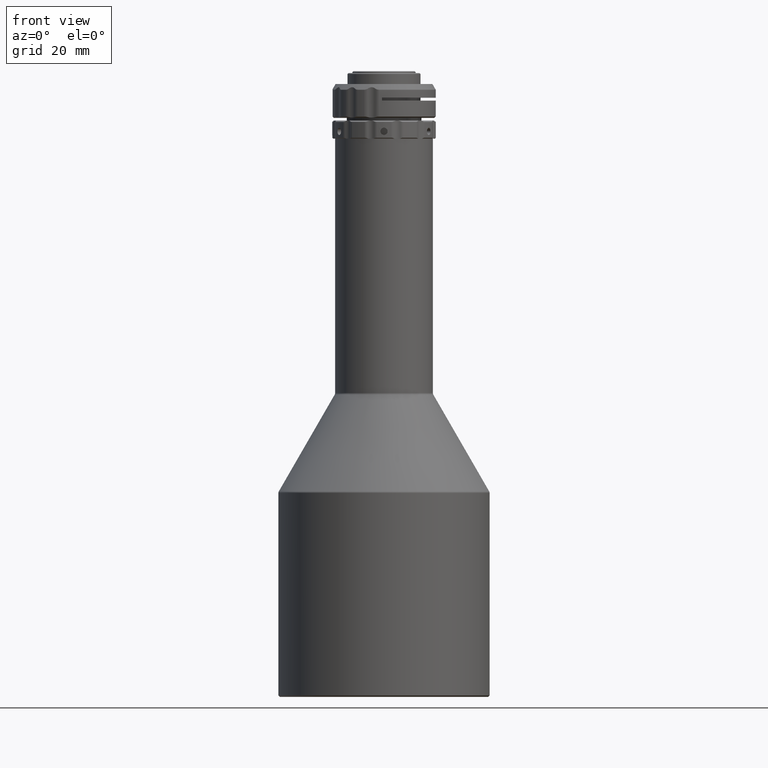
[diagram: clean part render]
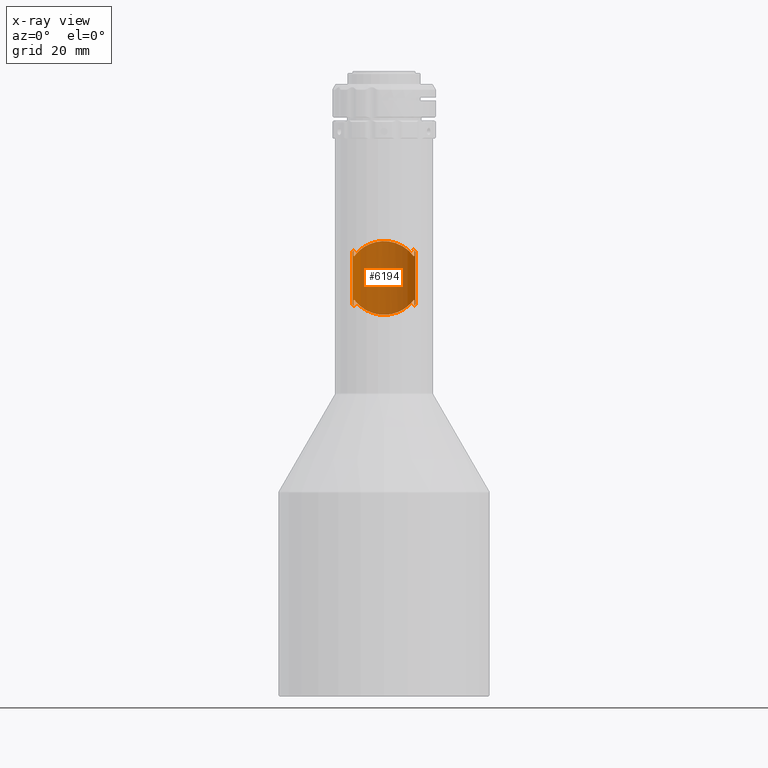
[diagram: x-ray — body ghosted, one internal face saturated and labeled with its STEP entity id]
A machine part, front view, then the same camera in x-ray: the body is ghosted and one INTERNAL B-rep face — a face not visible from any outside direction — is saturated and labeled: STEP entity #6194.
In plain terms, the highlighted cylindrical surface (partial cylindrical patch) has radius 15.2932 mm, axis along (-0, -0, 1).
Its self-contained STEP definition (entity closure, byte-faithful):
#27 = CARTESIAN_POINT ( 'NONE',  ( 10.51992422958268100, 11.10106620702074800, 40.60956071256474300 ) ) ;
#115 = EDGE_CURVE ( 'NONE', #3892, #7442, #443, .T. ) ;
#194 = CARTESIAN_POINT ( 'NONE',  ( 10.62456179475490400, 11.00000000000030400, 25.22518680178821500 ) ) ;
#225 = VERTEX_POINT ( 'NONE', #2726 ) ;
#266 = ORIENTED_EDGE ( 'NONE', *, *, #10247, .F. ) ;
#278 = CARTESIAN_POINT ( 'NONE',  ( -10.51992422958273500, 11.10106620702070400, 25.25305629285648100 ) ) ;
#304 = CARTESIAN_POINT ( 'NONE',  ( -7.650557271306993800, 13.24980617182746000, 43.23594495901364400 ) ) ;
#338 = CARTESIAN_POINT ( 'NONE',  ( -0.2499751579699509600, 15.29348193668676700, 45.75667015292305000 ) ) ;
#378 = CARTESIAN_POINT ( 'NONE',  ( -8.028920466383818100, 13.02311130603927600, 42.94337475816741500 ) ) ;
#442 = VERTEX_POINT ( 'NONE', #5906 ) ;
#443 = B_SPLINE_CURVE_WITH_KNOTS ( 'NONE', 3,
 ( #1707, #11429, #7985, #2688 ),
 .UNSPECIFIED., .F., .F.,
 ( 4, 4 ),
 ( 7.152448122690996000E-018, 0.001108929079528983900 ),
 .UNSPECIFIED. ) ;
#535 = ORIENTED_EDGE ( 'NONE', *, *, #10148, .F. ) ;
#562 = CARTESIAN_POINT ( 'NONE',  ( -8.036864442897382300, 13.01821076021959700, 22.92561068032857500 ) ) ;
#570 = VERTEX_POINT ( 'NONE', #11492 ) ;
#578 = VECTOR ( 'NONE', #10459, 1000.000000000000000 ) ;
#638 = B_SPLINE_CURVE_WITH_KNOTS ( 'NONE', 3,
 ( #11128, #4946, #8431, #8471 ),
 .UNSPECIFIED., .F., .F.,
 ( 4, 4 ),
 ( 9.420603377531353200E-005, 0.001008493004291815900 ),
 .UNSPECIFIED. ) ;
#655 = DIRECTION ( 'NONE',  ( 0.0000000000000000000, 0.0000000000000000000, -1.000000000000000000 ) ) ;
#710 = DIRECTION ( 'NONE',  ( -0.0000000000000000000, -0.0000000000000000000, 1.000000000000000000 ) ) ;
#843 = CARTESIAN_POINT ( 'NONE',  ( 10.92663321113036400, 10.70000000000027300, 42.07850406580116200 ) ) ;
#846 = CARTESIAN_POINT ( 'NONE',  ( -10.62456179475515200, 11.00000000000006400, 23.89133136394410400 ) ) ;
#913 = CARTESIAN_POINT ( 'NONE',  ( 10.62456179475544700, 11.00000000000029500, 23.89133136394446700 ) ) ;
#1014 = VERTEX_POINT ( 'NONE', #3478 ) ;
#1086 = CARTESIAN_POINT ( 'NONE',  ( 10.62456179475544700, 10.99999999999978000, 1000.000000000000000 ) ) ;
#1113 = EDGE_CURVE ( 'NONE', #4418, #6222, #8360, .T. ) ;
#1114 = ORIENTED_EDGE ( 'NONE', *, *, #9196, .F. ) ;
#1142 = VECTOR ( 'NONE', #6148, 1000.000000000000000 ) ;
#1153 = CARTESIAN_POINT ( 'NONE',  ( 10.30491694923240200, 11.30000000000029400, 25.29656478275407800 ) ) ;
#1172 = ORIENTED_EDGE ( 'NONE', *, *, #5350, .T. ) ;
#1218 = B_SPLINE_CURVE_WITH_KNOTS ( 'NONE', 3,
 ( #6817, #2320, #8554, #562, #4146, #10375, #5025, #9670, #8755, #3405, #6931, #8716, #11329, #10518, #10558, #7835, #6857, #2498, #4339, #7015, #5107, #3438, #11442, #5217, #1640, #1525, #9626, #6112, #7873, #8676, #11288, #4297, #5972, #4219 ),
 .UNSPECIFIED., .F., .F.,
 ( 4, 2, 2, 2, 2, 2, 2, 2, 2, 2, 2, 2, 2, 2, 2, 2, 4 ),
 ( 8.464064092352552000E-016, 0.003171535118301927800, 0.004757302677452468000, 0.006343070236603009000, 0.007928837795753549200, 0.009514605354904089400, 0.01268614047320516800, 0.01347902425278043800, 0.01427190803235571000, 0.01585767559150624800, 0.01665055937108151800, 0.01744344315065679200, 0.01902921070980732200, 0.02061497826895785500, 0.02220074582810838800, 0.02378651338725891800, 0.02537228094640945100 ),
 .UNSPECIFIED. ) ;
#1260 = VECTOR ( 'NONE', #655, 1000.000000000000000 ) ;
#1525 = CARTESIAN_POINT ( 'NONE',  ( 6.423285546945679800, 13.88715813253056600, 21.81953627950565200 ) ) ;
#1576 = LINE ( 'NONE', #1086, #11045 ) ;
#1609 = EDGE_CURVE ( 'NONE', #4425, #10221, #9995, .T. ) ;
#1640 = CARTESIAN_POINT ( 'NONE',  ( 5.539673696313627700, 14.26267063189366600, 21.35365353737494600 ) ) ;
#1649 = ORIENTED_EDGE ( 'NONE', *, *, #2578, .F. ) ;
#1669 = CARTESIAN_POINT ( 'NONE',  ( -10.52103649283271400, 11.10291204000849200, 42.54734720098227300 ) ) ;
#1678 = CARTESIAN_POINT ( 'NONE',  ( 10.62456179475491600, 11.00000000000029100, 40.63743020363347800 ) ) ;
#1707 = CARTESIAN_POINT ( 'NONE',  ( -10.92663321113036500, 10.70000000000030500, 23.78411293962011200 ) ) ;
#1722 = CARTESIAN_POINT ( 'NONE',  ( 10.41338391449886000, 11.20108468417623000, 40.58581003801421600 ) ) ;
#1749 = CARTESIAN_POINT ( 'NONE',  ( -10.72810844438735400, 10.90272965509578500, 42.31564858671703900 ) ) ;
#2048 = CARTESIAN_POINT ( 'NONE',  ( 5.551351988053275100, 14.25802008524564500, 44.50322579085630500 ) ) ;
#2066 = CARTESIAN_POINT ( 'NONE',  ( -10.30491694923181900, 11.30000000000031000, 40.56605222266882300 ) ) ;
#2085 = CARTESIAN_POINT ( 'NONE',  ( 6.428748866860838800, 13.88451776812456400, 44.03977224104017600 ) ) ;
#2100 = CARTESIAN_POINT ( 'NONE',  ( -10.62456179475544400, 11.00000000000029800, 40.63743020363320100 ) ) ;
#2158 = CARTESIAN_POINT ( 'NONE',  ( -10.92663321113036500, 10.70000000000030500, 42.07850406580158900 ) ) ;
#2171 = ORIENTED_EDGE ( 'NONE', *, *, #3006, .F. ) ;
#2227 = EDGE_CURVE ( 'NONE', #3606, #10345, #3595, .T. ) ;
#2274 = CARTESIAN_POINT ( 'NONE',  ( 10.92663321113036400, 10.70000000000027300, 23.78411293962049600 ) ) ;
#2320 = CARTESIAN_POINT ( 'NONE',  ( -9.745041350167570100, 11.81057270356354400, 24.54087844122218000 ) ) ;
#2353 = CARTESIAN_POINT ( 'NONE',  ( 10.72810844438735800, 10.90272965509578100, 23.54696841870500300 ) ) ;
#2442 = CARTESIAN_POINT ( 'NONE',  ( -10.30491694923237800, 11.30000000000029700, 23.08899237948929100 ) ) ;
#2498 = CARTESIAN_POINT ( 'NONE',  ( 2.099582896620404900, 15.15750726961549700, 20.26834682110336800 ) ) ;
#2578 = EDGE_CURVE ( 'NONE', #225, #442, #6510, .T. ) ;
#2688 = CARTESIAN_POINT ( 'NONE',  ( -10.30491694923237800, 11.30000000000029700, 23.08899237948929100 ) ) ;
#2699 = CARTESIAN_POINT ( 'NONE',  ( -10.62456179475544400, 10.99999999999978300, 1000.000000000000000 ) ) ;
#2726 = CARTESIAN_POINT ( 'NONE',  ( 10.92663321113036400, 10.70000000000027300, 42.07850406580116200 ) ) ;
#2743 = B_SPLINE_CURVE_WITH_KNOTS ( 'NONE', 3,
 ( #11451, #6121, #8010, #3643 ),
 .UNSPECIFIED., .F., .F.,
 ( 4, 4 ),
 ( 9.012802632015843000E-005, 0.001004414996836594700 ),
 .UNSPECIFIED. ) ;
#2902 = CARTESIAN_POINT ( 'NONE',  ( 6.851671310700949900, 13.68011249378317900, 43.78368382289977500 ) ) ;
#2917 = CARTESIAN_POINT ( 'NONE',  ( 10.30491694923206900, 11.30000000000008400, 23.08899237948968900 ) ) ;
#2942 = CARTESIAN_POINT ( 'NONE',  ( -5.539673696312766200, 14.26267063189399700, 44.50896346804734800 ) ) ;
#3006 = EDGE_CURVE ( 'NONE', #7735, #6891, #7407, .T. ) ;
#3016 = CARTESIAN_POINT ( 'NONE',  ( 4.144876559553498700, 14.72921661351716000, 45.07874158706962900 ) ) ;
#3033 = CARTESIAN_POINT ( 'NONE',  ( -10.30491694923182800, 11.30000000000030100, 25.29656478275286000 ) ) ;
#3052 = EDGE_CURVE ( 'NONE', #5317, #570, #1218, .T. ) ;
#3250 = ORIENTED_EDGE ( 'NONE', *, *, #5554, .T. ) ;
#3405 = CARTESIAN_POINT ( 'NONE',  ( -4.144876559552551900, 14.72921661351742600, 20.78387541835164500 ) ) ;
#3418 = CARTESIAN_POINT ( 'NONE',  ( -10.41670270960328000, 11.19805814365211200, 23.35362667868092100 ) ) ;
#3438 = CARTESIAN_POINT ( 'NONE',  ( 4.124437929504163800, 14.72873815685406900, 20.78482788755575300 ) ) ;
#3465 = CARTESIAN_POINT ( 'NONE',  ( -10.92663321113036500, 10.70000000000030500, 42.07850406580158900 ) ) ;
#3478 = CARTESIAN_POINT ( 'NONE',  ( -10.62456179475544400, 11.00000000000029800, 25.22518680178850300 ) ) ;
#3595 = B_SPLINE_CURVE_WITH_KNOTS ( 'NONE', 3,
 ( #2100, #3777, #7360, #2066 ),
 .UNSPECIFIED., .F., .F.,
 ( 4, 4 ),
 ( 4.419369574041553100E-005, 0.0004883419173414902000 ),
 .UNSPECIFIED. ) ;
#3606 = VERTEX_POINT ( 'NONE', #5136 ) ;
#3643 = CARTESIAN_POINT ( 'NONE',  ( -10.62456179475515900, 11.00000000000005900, 41.97128564147760000 ) ) ;
#3676 = CARTESIAN_POINT ( 'NONE',  ( 10.62456179475491600, 11.00000000000029100, 40.63743020363347800 ) ) ;
#3733 = CARTESIAN_POINT ( 'NONE',  ( -10.30491694923237800, 11.30000000000029700, 23.08899237948929100 ) ) ;
#3739 = ORIENTED_EDGE ( 'NONE', *, *, #3861, .F. ) ;
#3777 = CARTESIAN_POINT ( 'NONE',  ( -10.51992422958273500, 11.10106620702070400, 40.60956071256520500 ) ) ;
#3799 = CARTESIAN_POINT ( 'NONE',  ( 9.745041350167591400, 11.81057270356351600, 41.32173856419911600 ) ) ;
#3810 = CARTESIAN_POINT ( 'NONE',  ( 10.92663321113033300, 10.69999999999982200, 1000.000000000000000 ) ) ;
#3838 = CARTESIAN_POINT ( 'NONE',  ( -9.084032632539065200, 12.30958816434220400, 41.99673511480548200 ) ) ;
#3861 = EDGE_CURVE ( 'NONE', #11083, #1014, #4201, .T. ) ;
#3881 = CARTESIAN_POINT ( 'NONE',  ( 7.657664146578690100, 13.24579395169078900, 43.23080507576386100 ) ) ;
#3892 = VERTEX_POINT ( 'NONE', #6872 ) ;
#3910 = CARTESIAN_POINT ( 'NONE',  ( 3.645778663326518600, 14.86123741297238300, 45.23824710515219700 ) ) ;
#4049 = ORIENTED_EDGE ( 'NONE', *, *, #6666, .F. ) ;
#4107 = VECTOR ( 'NONE', #7428, 1000.000000000000000 ) ;
#4146 = CARTESIAN_POINT ( 'NONE',  ( -7.657664146577975100, 13.24579395169120800, 22.63181192965705800 ) ) ;
#4201 = LINE ( 'NONE', #7663, #578 ) ;
#4219 = CARTESIAN_POINT ( 'NONE',  ( 10.30491694923240200, 11.30000000000029400, 25.29656478275407800 ) ) ;
#4225 = B_SPLINE_CURVE_WITH_KNOTS ( 'NONE', 3,
 ( #194, #9999, #8214, #1153 ),
 .UNSPECIFIED., .F., .F.,
 ( 4, 4 ),
 ( 4.419369574068992200E-005, 0.0004883419173411807700 ),
 .UNSPECIFIED. ) ;
#4297 = CARTESIAN_POINT ( 'NONE',  ( 9.723334633152243000, 11.81111227854897900, 24.55524903897466500 ) ) ;
#4339 = CARTESIAN_POINT ( 'NONE',  ( 2.615112715338707300, 15.07685685149838900, 20.36484688392196300 ) ) ;
#4340 = B_SPLINE_CURVE_WITH_KNOTS ( 'NONE', 3,
 ( #7145, #3799, #9220, #7417, #3881, #2902, #2085, #2048, #10140, #3016, #3910, #10905, #4724, #338, #9117, #6484, #4798, #10032, #10947, #8326, #6554, #6520, #7377, #5614, #2942, #8212, #9189, #304, #378, #11026, #3838, #9152, #4691, #10071 ),
 .UNSPECIFIED., .F., .F.,
 ( 4, 2, 2, 2, 2, 2, 2, 2, 2, 2, 2, 2, 2, 2, 2, 2, 4 ),
 ( 0.0000000000000000000, 0.003171535118301086400, 0.004757302677451627500, 0.006343070236602167700, 0.007928837795752707900, 0.009514605354903248000, 0.01268614047320433000, 0.01347902425277960200, 0.01427190803235487200, 0.01585767559150541200, 0.01665055937108068200, 0.01744344315065595200, 0.01902921070980648900, 0.02061497826895702200, 0.02220074582810755900, 0.02378651338725809200, 0.02537228094640862600 ),
 .UNSPECIFIED. ) ;
#4356 = CARTESIAN_POINT ( 'NONE',  ( 10.52103649283257300, 11.10291204000811900, 42.54734720098206700 ) ) ;
#4418 = VERTEX_POINT ( 'NONE', #10619 ) ;
#4425 = VERTEX_POINT ( 'NONE', #7112 ) ;
#4486 = EDGE_CURVE ( 'NONE', #5317, #1014, #4810, .T. ) ;
#4502 = CARTESIAN_POINT ( 'NONE',  ( 10.72810844438733300, 10.90272965509618600, 42.31564858671632800 ) ) ;
#4691 = CARTESIAN_POINT ( 'NONE',  ( -10.02476019751375500, 11.55548602294040400, 40.94419092189948400 ) ) ;
#4702 = CARTESIAN_POINT ( 'NONE',  ( 10.62456179475490400, 11.00000000000030400, 25.22518680178821500 ) ) ;
#4724 = CARTESIAN_POINT ( 'NONE',  ( 1.089464074883327700, 15.29191306896611600, 45.75479935516239700 ) ) ;
#4798 = CARTESIAN_POINT ( 'NONE',  ( -1.314379198873259600, 15.23886350951262400, 45.69150394768662000 ) ) ;
#4810 = B_SPLINE_CURVE_WITH_KNOTS ( 'NONE', 3,
 ( #7230, #10810, #278, #5705 ),
 .UNSPECIFIED., .F., .F.,
 ( 4, 4 ),
 ( 4.525275888342147600E-005, 0.0004894009804844791700 ),
 .UNSPECIFIED. ) ;
#4946 = CARTESIAN_POINT ( 'NONE',  ( 10.52317378605841600, 11.09792756033148600, 42.24156205841541800 ) ) ;
#4985 = DIRECTION ( 'NONE',  ( 0.0000000000000000000, 0.0000000000000000000, -1.000000000000000000 ) ) ;
#5025 = CARTESIAN_POINT ( 'NONE',  ( -6.428748866860032300, 13.88451776812493700, 21.82284476438085000 ) ) ;
#5071 = CARTESIAN_POINT ( 'NONE',  ( 10.30491694923206900, 11.30000000000008400, 23.08899237948968900 ) ) ;
#5107 = CARTESIAN_POINT ( 'NONE',  ( 3.629668589996192000, 14.85840576422305000, 20.62791525143799700 ) ) ;
#5116 = CARTESIAN_POINT ( 'NONE',  ( -10.62456179475515200, 11.00000000000006400, 23.89133136394410400 ) ) ;
#5136 = CARTESIAN_POINT ( 'NONE',  ( -10.62456179475544400, 11.00000000000029800, 40.63743020363320100 ) ) ;
#5146 = VECTOR ( 'NONE', #4985, 1000.000000000000000 ) ;
#5217 = CARTESIAN_POINT ( 'NONE',  ( 5.081389645586264200, 14.43295534088251800, 21.14485584310095900 ) ) ;
#5309 = LINE ( 'NONE', #2699, #1142 ) ;
#5316 = CARTESIAN_POINT ( 'NONE',  ( 10.30491694923207300, 11.30000000000007900, 42.77362462593201500 ) ) ;
#5317 = VERTEX_POINT ( 'NONE', #3033 ) ;
#5350 = EDGE_CURVE ( 'NONE', #7735, #7833, #10915, .T. ) ;
#5414 = CARTESIAN_POINT ( 'NONE',  ( 10.30491694923240200, 11.30000000000029400, 40.56605222266762200 ) ) ;
#5489 = FACE_OUTER_BOUND ( 'NONE', #8244, .T. ) ;
#5554 = EDGE_CURVE ( 'NONE', #11083, #7442, #7966, .T. ) ;
#5578 = LINE ( 'NONE', #8698, #1260 ) ;
#5596 = CARTESIAN_POINT ( 'NONE',  ( 10.62456179475544700, 11.00000000000029500, 23.89133136394446700 ) ) ;
#5614 = CARTESIAN_POINT ( 'NONE',  ( -5.081389645585376900, 14.43295534088282700, 44.71776116232126700 ) ) ;
#5705 = CARTESIAN_POINT ( 'NONE',  ( -10.62456179475544400, 11.00000000000029800, 25.22518680178850300 ) ) ;
#5805 = EDGE_CURVE ( 'NONE', #9678, #570, #4225, .T. ) ;
#5840 = VERTEX_POINT ( 'NONE', #7307 ) ;
#5842 = ORIENTED_EDGE ( 'NONE', *, *, #7964, .T. ) ;
#5906 = CARTESIAN_POINT ( 'NONE',  ( 10.30491694923207300, 11.30000000000007900, 42.77362462593201500 ) ) ;
#5923 = ORIENTED_EDGE ( 'NONE', *, *, #1609, .F. ) ;
#5932 = CARTESIAN_POINT ( 'NONE',  ( 10.52103649283271700, 11.10291204000848900, 23.31526980443975100 ) ) ;
#5972 = CARTESIAN_POINT ( 'NONE',  ( 10.02476019751377500, 11.55548602294039600, 24.91842608352266100 ) ) ;
#6052 = CARTESIAN_POINT ( 'NONE',  ( -10.52317378605840800, 11.09792756033149400, 23.62105494700590600 ) ) ;
#6112 = CARTESIAN_POINT ( 'NONE',  ( 7.650557271307697200, 13.24980617182704800, 22.62667204640882100 ) ) ;
#6121 = CARTESIAN_POINT ( 'NONE',  ( -10.41670270960329200, 11.19805814365210000, 42.50899032674076500 ) ) ;
#6148 = DIRECTION ( 'NONE',  ( -0.0000000000000000000, -0.0000000000000000000, 1.000000000000000000 ) ) ;
#6194 = ADVANCED_FACE ( 'NONE', ( #5489 ), #8874, .T. ) ;
#6222 = VERTEX_POINT ( 'NONE', #1678 ) ;
#6441 = AXIS2_PLACEMENT_3D ( 'NONE', #10476, #710, #7795 ) ;
#6484 = CARTESIAN_POINT ( 'NONE',  ( -1.050654901363530700, 15.25936634574260300, 45.71597322065131400 ) ) ;
#6510 = B_SPLINE_CURVE_WITH_KNOTS ( 'NONE', 3,
 ( #843, #4502, #4356, #5316 ),
 .UNSPECIFIED., .F., .F.,
 ( 4, 4 ),
 ( 0.0000000000000000000, 0.001108929079529063300 ),
 .UNSPECIFIED. ) ;
#6520 = CARTESIAN_POINT ( 'NONE',  ( -4.124437929503217900, 14.72873815685433600, 45.07778911786638100 ) ) ;
#6554 = CARTESIAN_POINT ( 'NONE',  ( -3.629668589995217200, 14.85840576422329000, 45.23470175398409800 ) ) ;
#6617 = ORIENTED_EDGE ( 'NONE', *, *, #4486, .T. ) ;
#6666 = EDGE_CURVE ( 'NONE', #6891, #225, #8867, .T. ) ;
#6817 = CARTESIAN_POINT ( 'NONE',  ( -10.30491694923182800, 11.30000000000030100, 25.29656478275286000 ) ) ;
#6857 = CARTESIAN_POINT ( 'NONE',  ( 1.314379198874296800, 15.23886350951253200, 20.17111305773523700 ) ) ;
#6872 = CARTESIAN_POINT ( 'NONE',  ( -10.92663321113036500, 10.70000000000030500, 23.78411293962011200 ) ) ;
#6891 = VERTEX_POINT ( 'NONE', #10714 ) ;
#6931 = CARTESIAN_POINT ( 'NONE',  ( -3.645778663325541100, 14.86123741297262200, 20.62436990026912700 ) ) ;
#7015 = CARTESIAN_POINT ( 'NONE',  ( 3.376858368107869900, 14.91795627149691200, 20.55609176342325400 ) ) ;
#7112 = CARTESIAN_POINT ( 'NONE',  ( -10.30491694923237800, 11.30000000000029700, 42.77362462593237100 ) ) ;
#7145 = CARTESIAN_POINT ( 'NONE',  ( 10.30491694923240200, 11.30000000000029400, 40.56605222266762200 ) ) ;
#7216 = ORIENTED_EDGE ( 'NONE', *, *, #3052, .F. ) ;
#7230 = CARTESIAN_POINT ( 'NONE',  ( -10.30491694923182800, 11.30000000000030100, 25.29656478275286000 ) ) ;
#7307 = CARTESIAN_POINT ( 'NONE',  ( -10.62456179475515900, 11.00000000000005900, 41.97128564147760000 ) ) ;
#7360 = CARTESIAN_POINT ( 'NONE',  ( -10.41338391449877700, 11.20108468417631200, 40.58581003801464200 ) ) ;
#7377 = CARTESIAN_POINT ( 'NONE',  ( -4.367049536107241900, 14.65853142363380900, 44.99259342000144800 ) ) ;
#7397 = CARTESIAN_POINT ( 'NONE',  ( 10.41670270960328500, 11.19805814365210700, 23.35362667868128400 ) ) ;
#7407 = B_SPLINE_CURVE_WITH_KNOTS ( 'NONE', 3,
 ( #5071, #5932, #2353, #2274 ),
 .UNSPECIFIED., .F., .F.,
 ( 4, 4 ),
 ( 2.907926436840383400E-017, 0.001108929079529011700 ),
 .UNSPECIFIED. ) ;
#7417 = CARTESIAN_POINT ( 'NONE',  ( 8.036864442898060900, 13.01821076021917100, 42.93700632509232700 ) ) ;
#7428 = DIRECTION ( 'NONE',  ( -0.0000000000000000000, -0.0000000000000000000, 1.000000000000000000 ) ) ;
#7442 = VERTEX_POINT ( 'NONE', #3733 ) ;
#7456 = EDGE_CURVE ( 'NONE', #9678, #7833, #1576, .T. ) ;
#7663 = CARTESIAN_POINT ( 'NONE',  ( -10.62456179475544400, 10.99999999999978300, 1000.000000000000000 ) ) ;
#7735 = VERTEX_POINT ( 'NONE', #10524 ) ;
#7795 = DIRECTION ( 'NONE',  ( 1.000000000000000000, 0.0000000000000000000, 0.0000000000000000000 ) ) ;
#7833 = VERTEX_POINT ( 'NONE', #913 ) ;
#7835 = CARTESIAN_POINT ( 'NONE',  ( 1.050654901364571800, 15.25936634574252800, 20.14664378477050000 ) ) ;
#7873 = CARTESIAN_POINT ( 'NONE',  ( 8.028920466384489500, 13.02311130603886900, 22.91924224725507700 ) ) ;
#7964 = EDGE_CURVE ( 'NONE', #8819, #442, #638, .T. ) ;
#7966 = B_SPLINE_CURVE_WITH_KNOTS ( 'NONE', 3,
 ( #5116, #6052, #3418, #2442 ),
 .UNSPECIFIED., .F., .F.,
 ( 4, 4 ),
 ( 9.420603377534433700E-005, 0.001008493004291811500 ),
 .UNSPECIFIED. ) ;
#7985 = CARTESIAN_POINT ( 'NONE',  ( -10.52103649283255700, 11.10291204000813400, 23.31526980443921800 ) ) ;
#8010 = CARTESIAN_POINT ( 'NONE',  ( -10.52317378605841800, 11.09792756033148500, 42.24156205841578800 ) ) ;
#8212 = CARTESIAN_POINT ( 'NONE',  ( -6.423285546944872400, 13.88715813253094200, 44.04308072591673100 ) ) ;
#8214 = CARTESIAN_POINT ( 'NONE',  ( 10.41338391449885700, 11.20108468417623500, 25.27680696740747700 ) ) ;
#8236 = LINE ( 'NONE', #9407, #5146 ) ;
#8244 = EDGE_LOOP ( 'NONE', ( #4049, #2171, #1172, #9696, #9927, #7216, #6617, #3739, #3250, #11033, #10944, #5923, #8941, #1114, #10920, #535, #11070, #266, #5842, #1649 ) ) ;
#8264 = CARTESIAN_POINT ( 'NONE',  ( 10.52317378605841100, 11.09792756033149000, 23.62105494700628200 ) ) ;
#8326 = CARTESIAN_POINT ( 'NONE',  ( -3.376858368106884000, 14.91795627149713100, 45.30652524199882000 ) ) ;
#8360 = B_SPLINE_CURVE_WITH_KNOTS ( 'NONE', 3,
 ( #5414, #1722, #27, #3676 ),
 .UNSPECIFIED., .F., .F.,
 ( 4, 4 ),
 ( 4.525275888371578200E-005, 0.0004894009804842226400 ),
 .UNSPECIFIED. ) ;
#8431 = CARTESIAN_POINT ( 'NONE',  ( 10.41670270960329100, 11.19805814365210100, 42.50899032674042400 ) ) ;
#8471 = CARTESIAN_POINT ( 'NONE',  ( 10.30491694923207300, 11.30000000000007900, 42.77362462593201500 ) ) ;
#8554 = CARTESIAN_POINT ( 'NONE',  ( -9.111583092024366300, 12.31239698228746200, 23.85618346211423500 ) ) ;
#8676 = CARTESIAN_POINT ( 'NONE',  ( 8.745668262579258100, 12.55301870411730600, 23.53884763241292800 ) ) ;
#8682 = EDGE_CURVE ( 'NONE', #4425, #5840, #2743, .T. ) ;
#8698 = CARTESIAN_POINT ( 'NONE',  ( -10.92663321113033000, 10.69999999999982500, 1000.000000000000000 ) ) ;
#8716 = CARTESIAN_POINT ( 'NONE',  ( -2.129314461243356800, 15.17940703585653800, 20.24139501876398100 ) ) ;
#8755 = CARTESIAN_POINT ( 'NONE',  ( -5.095308101143746900, 14.42801646437461300, 21.15090241517159700 ) ) ;
#8819 = VERTEX_POINT ( 'NONE', #11520 ) ;
#8867 = LINE ( 'NONE', #3810, #4107 ) ;
#8874 = CYLINDRICAL_SURFACE ( 'NONE', #6441, 15.29317865358840900 ) ;
#8941 = ORIENTED_EDGE ( 'NONE', *, *, #8682, .T. ) ;
#9117 = CARTESIAN_POINT ( 'NONE',  ( -0.5191020139943938200, 15.28668276946990000, 45.74856486946023200 ) ) ;
#9125 = DIRECTION ( 'NONE',  ( 0.0000000000000000000, 0.0000000000000000000, -1.000000000000000000 ) ) ;
#9152 = CARTESIAN_POINT ( 'NONE',  ( -9.723334633151733200, 11.81111227854940200, 41.30736796644801200 ) ) ;
#9189 = CARTESIAN_POINT ( 'NONE',  ( -6.849208740630464500, 13.68125468587646800, 43.78510501293639100 ) ) ;
#9196 = EDGE_CURVE ( 'NONE', #3606, #5840, #5309, .T. ) ;
#9220 = CARTESIAN_POINT ( 'NONE',  ( 9.111583092024947200, 12.31239698228702500, 42.00643354330655700 ) ) ;
#9407 = CARTESIAN_POINT ( 'NONE',  ( 10.62456179475544700, 10.99999999999978000, 1000.000000000000000 ) ) ;
#9469 = EDGE_CURVE ( 'NONE', #10221, #3892, #5578, .T. ) ;
#9623 = CARTESIAN_POINT ( 'NONE',  ( -10.30491694923181900, 11.30000000000031000, 40.56605222266882300 ) ) ;
#9626 = CARTESIAN_POINT ( 'NONE',  ( 6.849208740631235400, 13.68125468587607300, 22.07751199248600900 ) ) ;
#9670 = CARTESIAN_POINT ( 'NONE',  ( -5.551351988052407400, 14.25802008524598600, 21.35939121456483000 ) ) ;
#9678 = VERTEX_POINT ( 'NONE', #4702 ) ;
#9696 = ORIENTED_EDGE ( 'NONE', *, *, #7456, .F. ) ;
#9927 = ORIENTED_EDGE ( 'NONE', *, *, #5805, .T. ) ;
#9995 = B_SPLINE_CURVE_WITH_KNOTS ( 'NONE', 3,
 ( #11353, #1669, #1749, #3465 ),
 .UNSPECIFIED., .F., .F.,
 ( 4, 4 ),
 ( 0.0000000000000000000, 0.001108929079528954000 ),
 .UNSPECIFIED. ) ;
#9999 = CARTESIAN_POINT ( 'NONE',  ( 10.51992422958267400, 11.10106620702075900, 25.25305629285694700 ) ) ;
#10032 = CARTESIAN_POINT ( 'NONE',  ( -2.099582896619385200, 15.15750726961563500, 45.59427018431857400 ) ) ;
#10071 = CARTESIAN_POINT ( 'NONE',  ( -10.30491694923181900, 11.30000000000031000, 40.56605222266882300 ) ) ;
#10140 = CARTESIAN_POINT ( 'NONE',  ( 5.095308101144637700, 14.42801646437429500, 44.71171459024959200 ) ) ;
#10148 = EDGE_CURVE ( 'NONE', #4418, #10345, #4340, .T. ) ;
#10221 = VERTEX_POINT ( 'NONE', #2158 ) ;
#10247 = EDGE_CURVE ( 'NONE', #8819, #6222, #8236, .T. ) ;
#10345 = VERTEX_POINT ( 'NONE', #9623 ) ;
#10375 = CARTESIAN_POINT ( 'NONE',  ( -6.851671310700160300, 13.68011249378357300, 22.07893318252123600 ) ) ;
#10459 = DIRECTION ( 'NONE',  ( -0.0000000000000000000, -0.0000000000000000000, 1.000000000000000000 ) ) ;
#10476 = CARTESIAN_POINT ( 'NONE',  ( 0.0000000000000000000, 0.0000000000000000000, 1000.000000000000000 ) ) ;
#10518 = CARTESIAN_POINT ( 'NONE',  ( 0.2499751579710136900, 15.29348193668674600, 20.10594685249869000 ) ) ;
#10524 = CARTESIAN_POINT ( 'NONE',  ( 10.30491694923206900, 11.30000000000008400, 23.08899237948968900 ) ) ;
#10558 = CARTESIAN_POINT ( 'NONE',  ( 0.5191020139954468600, 15.28668276946987000, 20.11405213596151900 ) ) ;
#10619 = CARTESIAN_POINT ( 'NONE',  ( 10.30491694923240200, 11.30000000000029400, 40.56605222266762200 ) ) ;
#10714 = CARTESIAN_POINT ( 'NONE',  ( 10.92663321113036400, 10.70000000000027300, 23.78411293962049600 ) ) ;
#10810 = CARTESIAN_POINT ( 'NONE',  ( -10.41338391449878000, 11.20108468417630700, 25.27680696740704400 ) ) ;
#10905 = CARTESIAN_POINT ( 'NONE',  ( 2.129314461244372800, 15.17940703585640300, 45.62122198665748800 ) ) ;
#10915 = B_SPLINE_CURVE_WITH_KNOTS ( 'NONE', 3,
 ( #2917, #7397, #8264, #5596 ),
 .UNSPECIFIED., .F., .F.,
 ( 4, 4 ),
 ( 9.012802631934538600E-005, 0.001004414996835845600 ),
 .UNSPECIFIED. ) ;
#10920 = ORIENTED_EDGE ( 'NONE', *, *, #2227, .T. ) ;
#10944 = ORIENTED_EDGE ( 'NONE', *, *, #9469, .F. ) ;
#10947 = CARTESIAN_POINT ( 'NONE',  ( -2.615112715337701800, 15.07685685149856300, 45.49777012150003200 ) ) ;
#11026 = CARTESIAN_POINT ( 'NONE',  ( -8.745668262578659500, 12.55301870411772900, 42.32376937300966100 ) ) ;
#11033 = ORIENTED_EDGE ( 'NONE', *, *, #115, .F. ) ;
#11045 = VECTOR ( 'NONE', #9125, 1000.000000000000000 ) ;
#11070 = ORIENTED_EDGE ( 'NONE', *, *, #1113, .T. ) ;
#11083 = VERTEX_POINT ( 'NONE', #846 ) ;
#11128 = CARTESIAN_POINT ( 'NONE',  ( 10.62456179475544700, 11.00000000000029500, 41.97128564147723800 ) ) ;
#11288 = CARTESIAN_POINT ( 'NONE',  ( 9.084032632539633700, 12.30958816434178300, 23.86588189061710400 ) ) ;
#11329 = CARTESIAN_POINT ( 'NONE',  ( -1.089464074882288600, 15.29191306896618800, 20.10781765025917500 ) ) ;
#11353 = CARTESIAN_POINT ( 'NONE',  ( -10.30491694923237800, 11.30000000000029700, 42.77362462593237100 ) ) ;
#11429 = CARTESIAN_POINT ( 'NONE',  ( -10.72810844438733800, 10.90272965509617900, 23.54696841870497100 ) ) ;
#11442 = CARTESIAN_POINT ( 'NONE',  ( 4.367049536108170000, 14.65853142363353400, 20.87002358542071400 ) ) ;
#11451 = CARTESIAN_POINT ( 'NONE',  ( -10.30491694923237800, 11.30000000000029700, 42.77362462593237100 ) ) ;
#11492 = CARTESIAN_POINT ( 'NONE',  ( 10.30491694923240200, 11.30000000000029400, 25.29656478275407800 ) ) ;
#11520 = CARTESIAN_POINT ( 'NONE',  ( 10.62456179475544700, 11.00000000000029500, 41.97128564147723800 ) ) ;